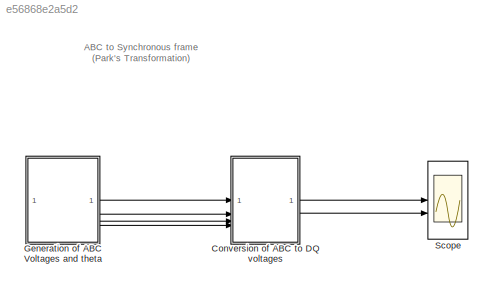
MODEL slx_e56868e2a5d2
KIND model
CONFIG AbsTol = auto
CONFIG EnableMultiTasking = off
CONFIG FixedStep = auto
CONFIG MaxStep = auto
CONFIG MinStep = auto
CONFIG RelTol = 1e-3
CONFIG SampleTimeConstraint = Unconstrained
CONFIG SolverName = VariableStepAuto
CONFIG StartTime = 0.0
CONFIG StopTime = 1
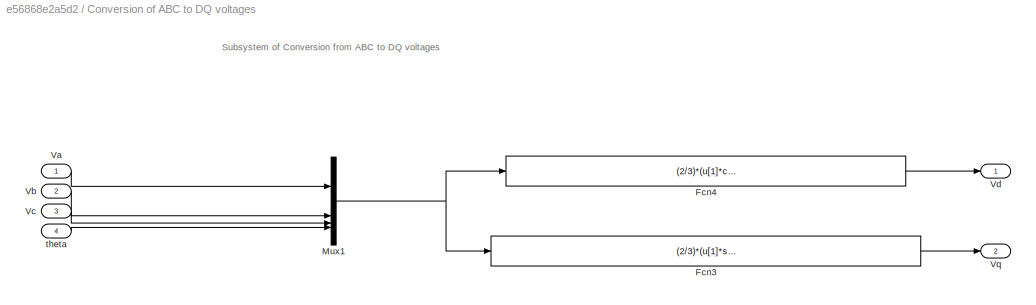
BLOCK [SubSystem] Conversion of ABC to DQ voltages
BLOCK [Fcn] Conversion of ABC to DQ voltages/Fcn3
  Expr = (2/3)*(u[1]*sin(u[4])+u[2]*(sin(u[4]-((120*3.14)/180)))+u[3]*(sin(u[4]+((120*3.14)/180))))
BLOCK [Fcn] Conversion of ABC to DQ voltages/Fcn4
  Expr = (2/3)*(u[1]*cos(u[4])+u[2]*(cos(u[4]-((120*3.14)/180)))+u[3]*(cos(u[4]+((120*3.14)/180))))
BLOCK [Mux] Conversion of ABC to DQ voltages/Mux1
  DisplayOption = bar
BLOCK [Inport] Conversion of ABC to DQ voltages/Va
BLOCK [Inport] Conversion of ABC to DQ voltages/Vb
  Port = 2
BLOCK [Inport] Conversion of ABC to DQ voltages/Vc
  Port = 3
BLOCK [Outport] Conversion of ABC to DQ voltages/Vd
BLOCK [Outport] Conversion of ABC to DQ voltages/Vq
  Port = 2
BLOCK [Inport] Conversion of ABC to DQ voltages/theta
  Port = 4
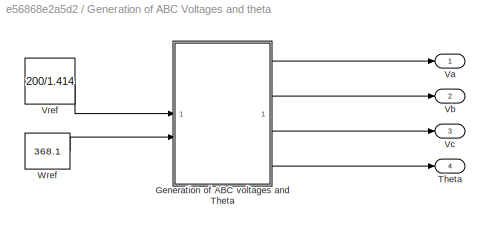
BLOCK [SubSystem] Generation of ABC Voltages and theta
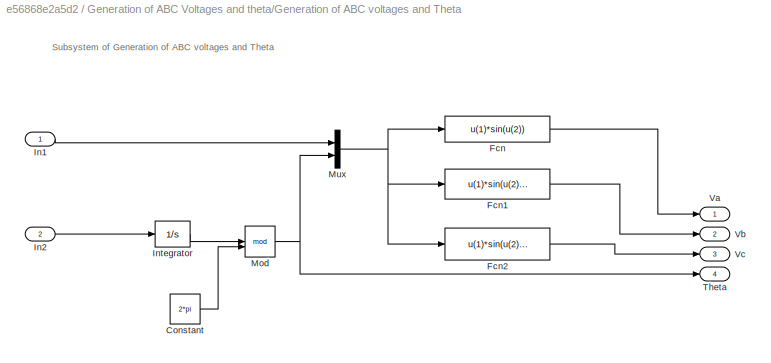
BLOCK [SubSystem] Generation of ABC Voltages and theta/Generation of ABC voltages and Theta
BLOCK [Constant] Generation of ABC Voltages and theta/Generation of ABC voltages and Theta/Constant
  Value = 2*pi
BLOCK [Fcn] Generation of ABC Voltages and theta/Generation of ABC voltages and Theta/Fcn
  Expr = u(1)*sin(u(2))
BLOCK [Fcn] Generation of ABC Voltages and theta/Generation of ABC voltages and Theta/Fcn1
  Expr = u(1)*sin(u(2)-2*pi/3)
BLOCK [Fcn] Generation of ABC Voltages and theta/Generation of ABC voltages and Theta/Fcn2
  Expr = u(1)*sin(u(2)+2*pi/3)
BLOCK [Inport] Generation of ABC Voltages and theta/Generation of ABC voltages and Theta/In1
BLOCK [Inport] Generation of ABC Voltages and theta/Generation of ABC voltages and Theta/In2
  Port = 2
BLOCK [Integrator] Generation of ABC Voltages and theta/Generation of ABC voltages and Theta/Integrator
BLOCK [Math] Generation of ABC Voltages and theta/Generation of ABC voltages and Theta/Mod
  Operator = mod
BLOCK [Mux] Generation of ABC Voltages and theta/Generation of ABC voltages and Theta/Mux
  DisplayOption = bar
  Inputs = 2
BLOCK [Outport] Generation of ABC Voltages and theta/Generation of ABC voltages and Theta/Theta
  Port = 4
BLOCK [Outport] Generation of ABC Voltages and theta/Generation of ABC voltages and Theta/Va
BLOCK [Outport] Generation of ABC Voltages and theta/Generation of ABC voltages and Theta/Vb
  Port = 2
BLOCK [Outport] Generation of ABC Voltages and theta/Generation of ABC voltages and Theta/Vc
  Port = 3
BLOCK [Outport] Generation of ABC Voltages and theta/Theta
  Port = 4
BLOCK [Outport] Generation of ABC Voltages and theta/Va
BLOCK [Outport] Generation of ABC Voltages and theta/Vb
  Port = 2
BLOCK [Outport] Generation of ABC Voltages and theta/Vc
  Port = 3
BLOCK [Constant] Generation of ABC Voltages and theta/Vref
  Value = 200/1.414
BLOCK [Constant] Generation of ABC Voltages and theta/Wref
  Value = 368.1
BLOCK [Scope] Scope
  Floating = off
  NumInputPorts = 2
  ScopeSpecificationString = Simulink.scopes.TimeScopeBlockCfg('CurrentConfiguration', extmgr.ConfigurationSet(extmgr.Configuration('Core','General UI',true,'FigureColor',[1 1 1]),extmgr.Configuration('Core','Source UI',true),extmgr.Configuration('Sources','WiredSimulink',true),extmgr.Configuration('Visuals','Time Domain',true,'TimeAxisLabels','All','SerializedDisplays',{struct('MinYLimReal','-17.78868','MaxYLimReal','159.231...<+1726ch>
ANNOTATION (root): ABC to Synchronous frame (Park's Transformation)
ANNOTATION Conversion of ABC to DQ voltages: Subsystem of Conversion from ABC to DQ voltages
ANNOTATION Generation of ABC Voltages and theta/Generation of ABC voltages and Theta: Subsystem of Generation of ABC voltages and Theta
LINE Conversion of ABC to DQ voltages/Fcn3:1 -> Conversion of ABC to DQ voltages/Vq:1
LINE Conversion of ABC to DQ voltages/Fcn4:1 -> Conversion of ABC to DQ voltages/Vd:1
NET Conversion of ABC to DQ voltages/Mux1:1 -> Conversion of ABC to DQ voltages/Fcn3:1, Conversion of ABC to DQ voltages/Fcn4:1
LINE Conversion of ABC to DQ voltages/Va:1 -> Conversion of ABC to DQ voltages/Mux1:1
LINE Conversion of ABC to DQ voltages/Vb:1 -> Conversion of ABC to DQ voltages/Mux1:2
LINE Conversion of ABC to DQ voltages/Vc:1 -> Conversion of ABC to DQ voltages/Mux1:3
LINE Conversion of ABC to DQ voltages/theta:1 -> Conversion of ABC to DQ voltages/Mux1:4
LINE Conversion of ABC to DQ voltages:1 -> Scope:1
LINE Conversion of ABC to DQ voltages:2 -> Scope:2
LINE Generation of ABC Voltages and theta/Generation of ABC voltages and Theta/Constant:1 -> Generation of ABC Voltages and theta/Generation of ABC voltages and Theta/Mod:2
LINE Generation of ABC Voltages and theta/Generation of ABC voltages and Theta/Fcn1:1 -> Generation of ABC Voltages and theta/Generation of ABC voltages and Theta/Vb:1
LINE Generation of ABC Voltages and theta/Generation of ABC voltages and Theta/Fcn2:1 -> Generation of ABC Voltages and theta/Generation of ABC voltages and Theta/Vc:1
LINE Generation of ABC Voltages and theta/Generation of ABC voltages and Theta/Fcn:1 -> Generation of ABC Voltages and theta/Generation of ABC voltages and Theta/Va:1
LINE Generation of ABC Voltages and theta/Generation of ABC voltages and Theta/In1:1 -> Generation of ABC Voltages and theta/Generation of ABC voltages and Theta/Mux:1
LINE Generation of ABC Voltages and theta/Generation of ABC voltages and Theta/In2:1 -> Generation of ABC Voltages and theta/Generation of ABC voltages and Theta/Integrator:1
LINE Generation of ABC Voltages and theta/Generation of ABC voltages and Theta/Integrator:1 -> Generation of ABC Voltages and theta/Generation of ABC voltages and Theta/Mod:1
NET Generation of ABC Voltages and theta/Generation of ABC voltages and Theta/Mod:1 -> Generation of ABC Voltages and theta/Generation of ABC voltages and Theta/Mux:2, Generation of ABC Voltages and theta/Generation of ABC voltages and Theta/Theta:1
NET Generation of ABC Voltages and theta/Generation of ABC voltages and Theta/Mux:1 -> Generation of ABC Voltages and theta/Generation of ABC voltages and Theta/Fcn1:1, Generation of ABC Voltages and theta/Generation of ABC voltages and Theta/Fcn2:1, Generation of ABC Voltages and theta/Generation of ABC voltages and Theta/Fcn:1
LINE Generation of ABC Voltages and theta/Generation of ABC voltages and Theta:1 -> Generation of ABC Voltages and theta/Va:1
LINE Generation of ABC Voltages and theta/Generation of ABC voltages and Theta:2 -> Generation of ABC Voltages and theta/Vb:1
LINE Generation of ABC Voltages and theta/Generation of ABC voltages and Theta:3 -> Generation of ABC Voltages and theta/Vc:1
LINE Generation of ABC Voltages and theta/Generation of ABC voltages and Theta:4 -> Generation of ABC Voltages and theta/Theta:1
LINE Generation of ABC Voltages and theta/Vref:1 -> Generation of ABC Voltages and theta/Generation of ABC voltages and Theta:1
LINE Generation of ABC Voltages and theta/Wref:1 -> Generation of ABC Voltages and theta/Generation of ABC voltages and Theta:2
LINE Generation of ABC Voltages and theta:1 -> Conversion of ABC to DQ voltages:1
LINE Generation of ABC Voltages and theta:2 -> Conversion of ABC to DQ voltages:2
LINE Generation of ABC Voltages and theta:3 -> Conversion of ABC to DQ voltages:3
LINE Generation of ABC Voltages and theta:4 -> Conversion of ABC to DQ voltages:4
note: NET lines group one-source signal fan-out (src -> all destinations, sorted); 1:1 wires keep LINE
